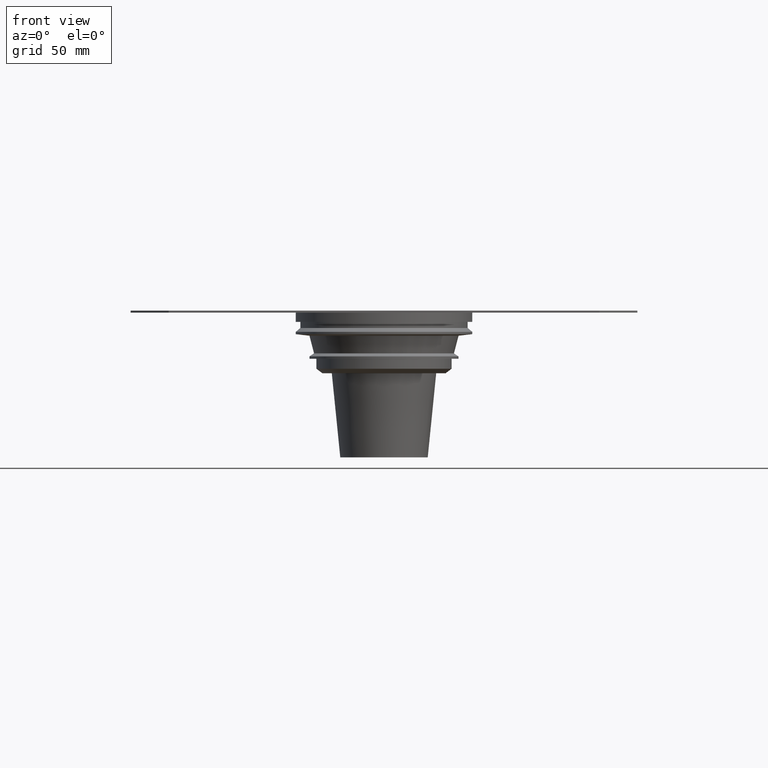
[diagram: clean part render]
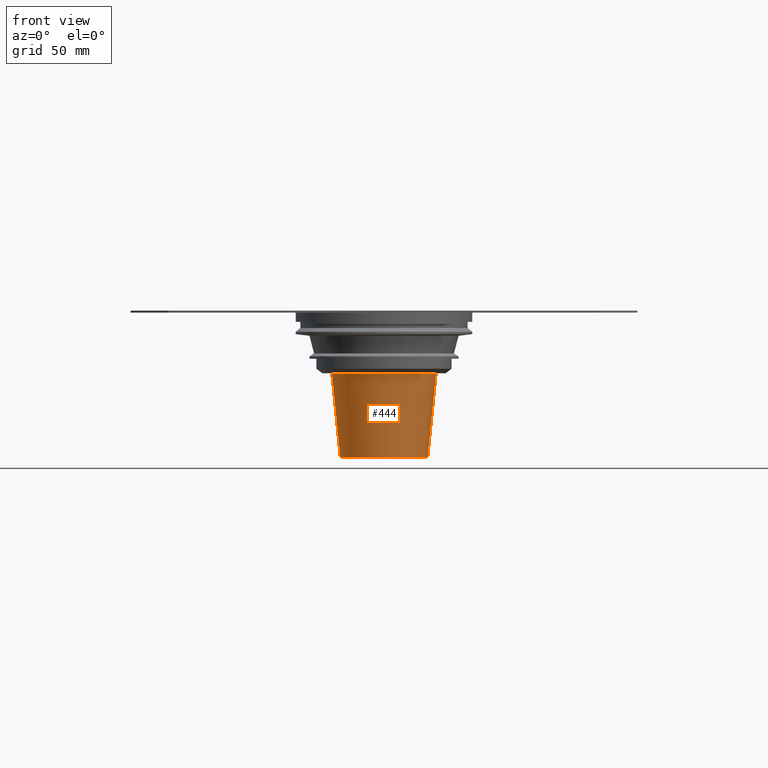
[diagram: same view with one face highlighted and labeled with its STEP entity id]
A machine part, front view. The second image highlights one B-rep face of the part: STEP entity #444.
In plain terms, the highlighted conical surface has half-angle 5.752 deg.
Its self-contained STEP definition (entity closure, byte-faithful):
#23=CONICAL_SURFACE('',#503,28.478,0.100386889809357);
#41=CIRCLE('',#502,28.478);
#42=CIRCLE('',#504,33.99);
#114=ORIENTED_EDGE('',*,*,#193,.T.);
#115=ORIENTED_EDGE('',*,*,#192,.F.);
#192=EDGE_CURVE('',#232,#232,#41,.T.);
#193=EDGE_CURVE('',#233,#233,#42,.T.);
#232=VERTEX_POINT('',#753);
#233=VERTEX_POINT('',#756);
#322=EDGE_LOOP('',(#114));
#323=EDGE_LOOP('',(#115));
#380=FACE_BOUND('',#322,.T.);
#381=FACE_BOUND('',#323,.T.);
#444=ADVANCED_FACE('',(#380,#381),#23,.T.);
#502=AXIS2_PLACEMENT_3D('',#752,#616,#617);
#503=AXIS2_PLACEMENT_3D('',#754,#618,#619);
#504=AXIS2_PLACEMENT_3D('',#755,#620,#621);
#616=DIRECTION('',(0.,0.,-1.));
#617=DIRECTION('',(-1.,0.,0.));
#618=DIRECTION('',(0.,0.,1.));
#619=DIRECTION('',(1.,0.,0.));
#620=DIRECTION('',(0.,0.,-1.));
#621=DIRECTION('',(-1.,0.,0.));
#752=CARTESIAN_POINT('',(0.,0.,-94.223));
#753=CARTESIAN_POINT('',(-28.478,0.,-94.223));
#754=CARTESIAN_POINT('',(0.,0.,-94.223));
#755=CARTESIAN_POINT('',(0.,0.,-39.5));
#756=CARTESIAN_POINT('',(-33.99,0.,-39.5));